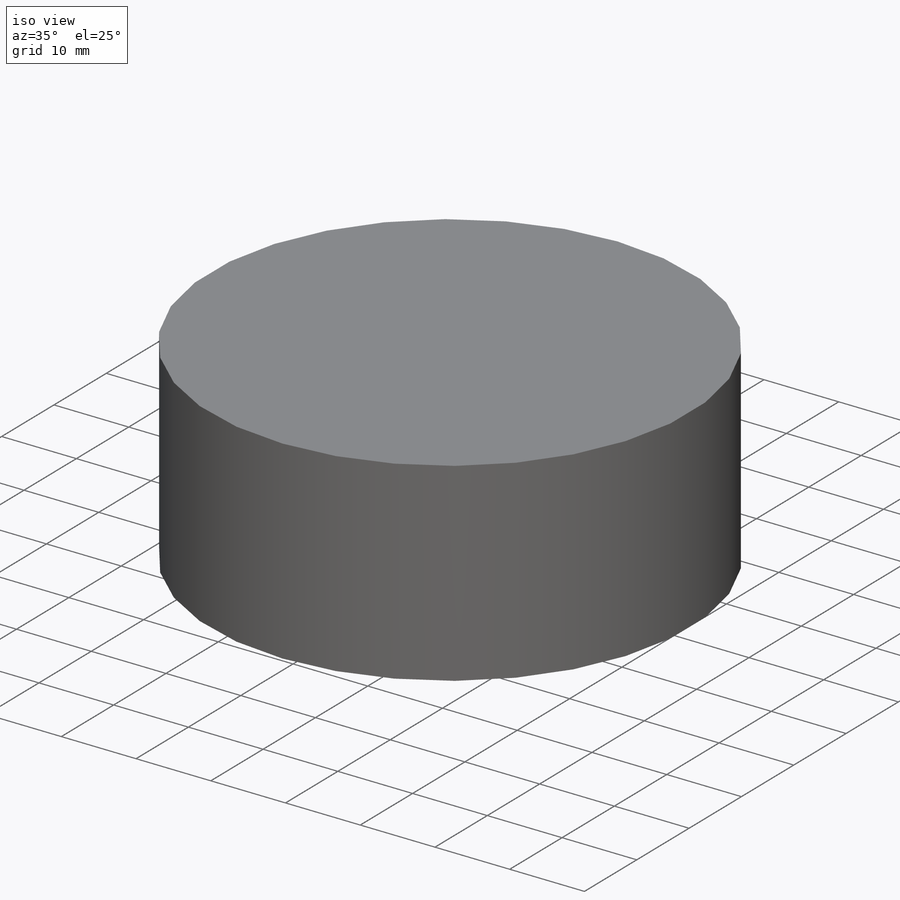
[diagram: iso view]
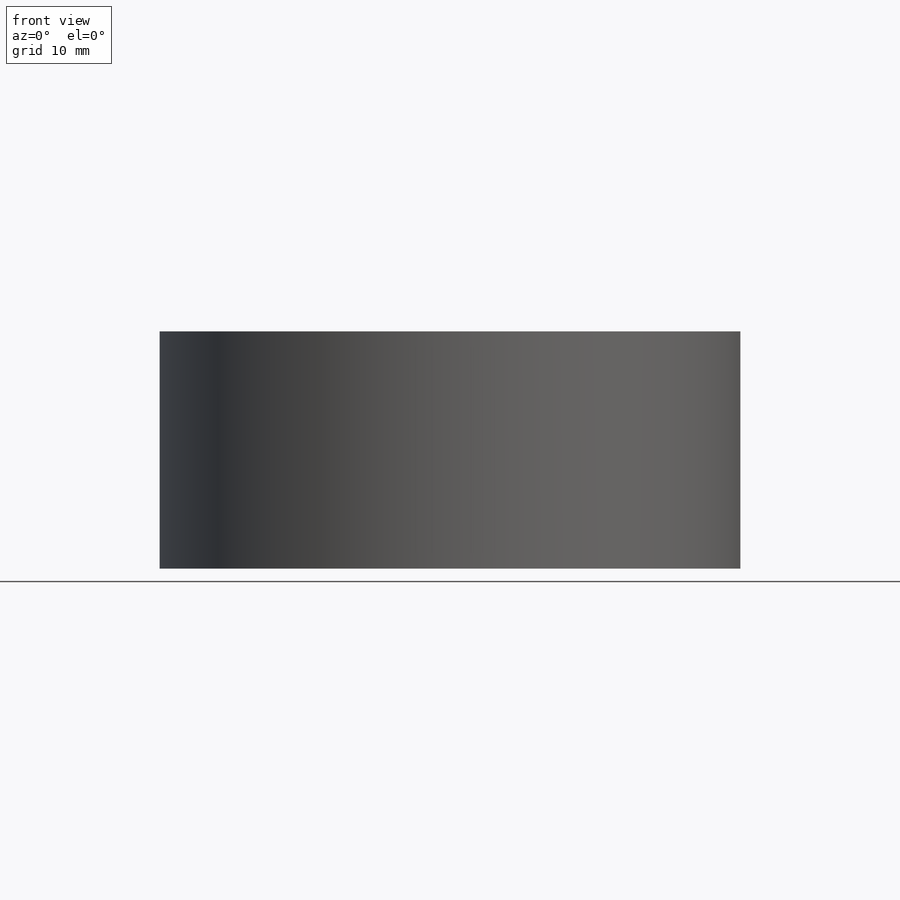
[diagram: front view]
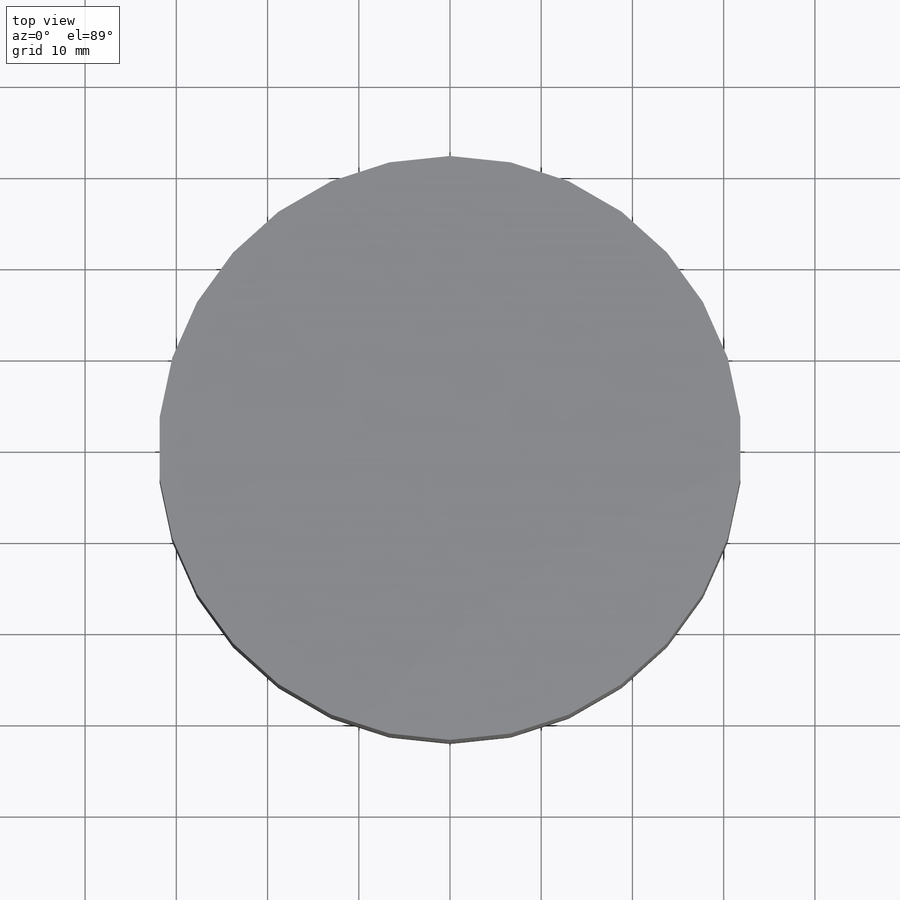
[diagram: top view]
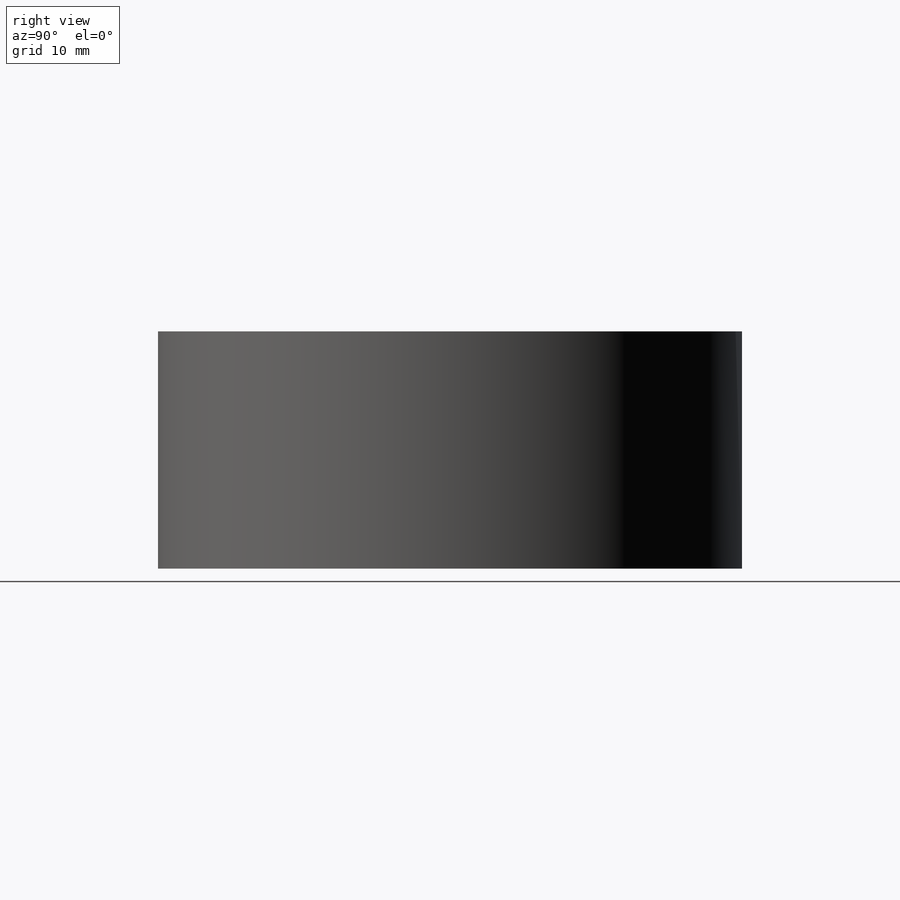
[diagram: right view]
SOLIDWORKS PART (.sldprt)
format: sldprt  version: not decoded by parser v0  size: 204,800 bytes
history: native  units: mm
features: sketch x5, extrude x4, material x1, cut_extrude x1 (+13 scaffold rows collapsed)
feature tree (24):
  scaffold x13  (default folders/planes/origin — collapsed)
  material  "Material <not specified>"
  sketch  "Sketch1"
  extrude  "Boss-Extrude1"  Depth=16mm
  sketch  "Sketch2"
  cut_extrude  "Cut-Extrude1"  Depth=3mm
  sketch  "Sketch4"
  extrude  "Boss-Extrude2"  Depth=22mm
  sketch  "Sketch5"  dims[c1.D4=~17.318879mm c1.D1=13.0mm c1.D2=~15.997738mm c1.D3=~13.297901mm c2.D2=~3.196064mm]
  extrude  "Boss-Extrude3"  Depth=19mm
  extrude  "Boss-Extrude4"  [1 undecoded]
  sketch  "Sketch5<3>"  dims[D1=12.0mm]
decode coverage: 6 of 10 modeling features carry decoded parameters
note: ~ marks probable driven/reference dimensions
note: 1 parameter value undecoded
note: suppression state not decoded; provenance and decode notes live in map.json
